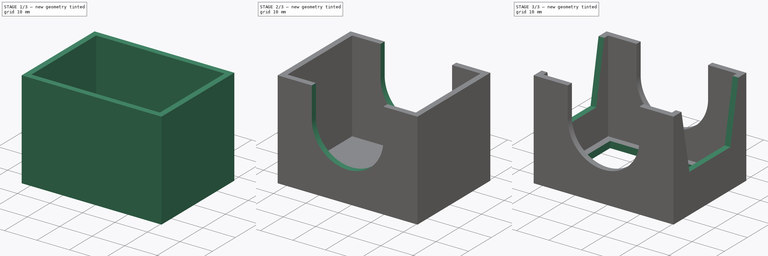
[diagram: build sequence overview — one tinted view per stage of 3, left to right]
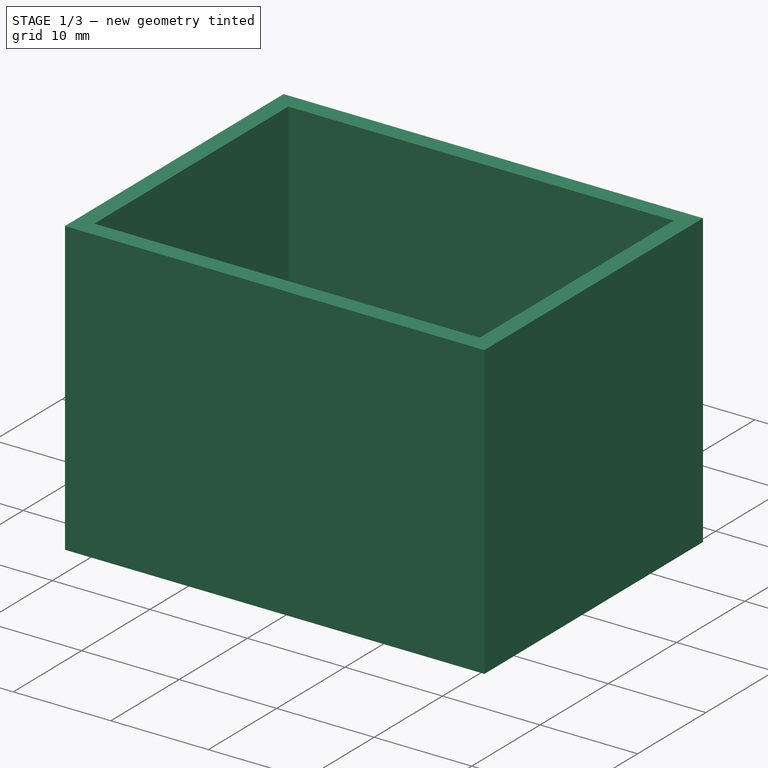
[diagram: stage 1 of 3 — iso view after this stage's code; geometry added in this stage tinted green]
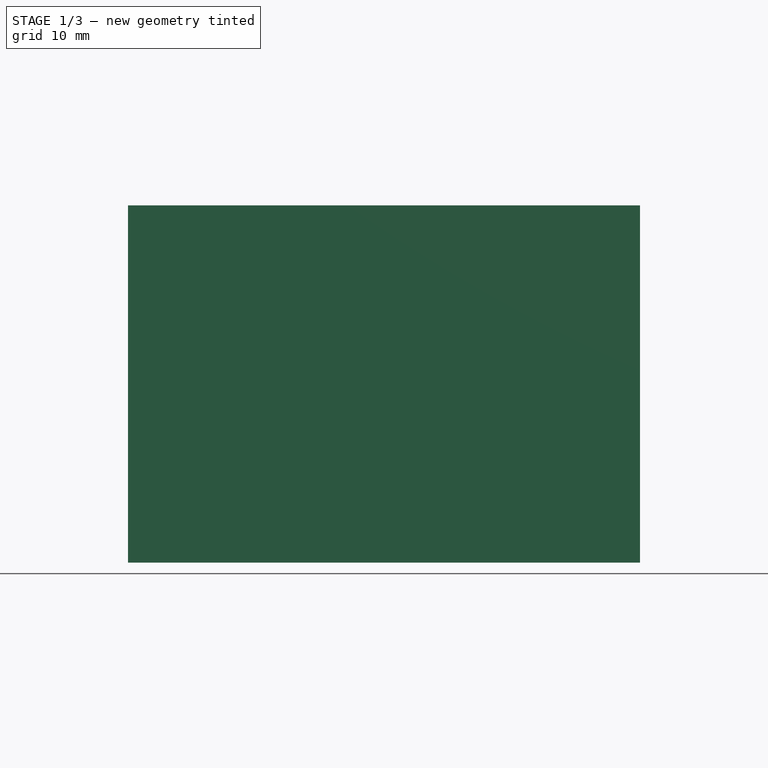
[diagram: stage 1 of 3 — front view after this stage's code; geometry added in this stage tinted green]
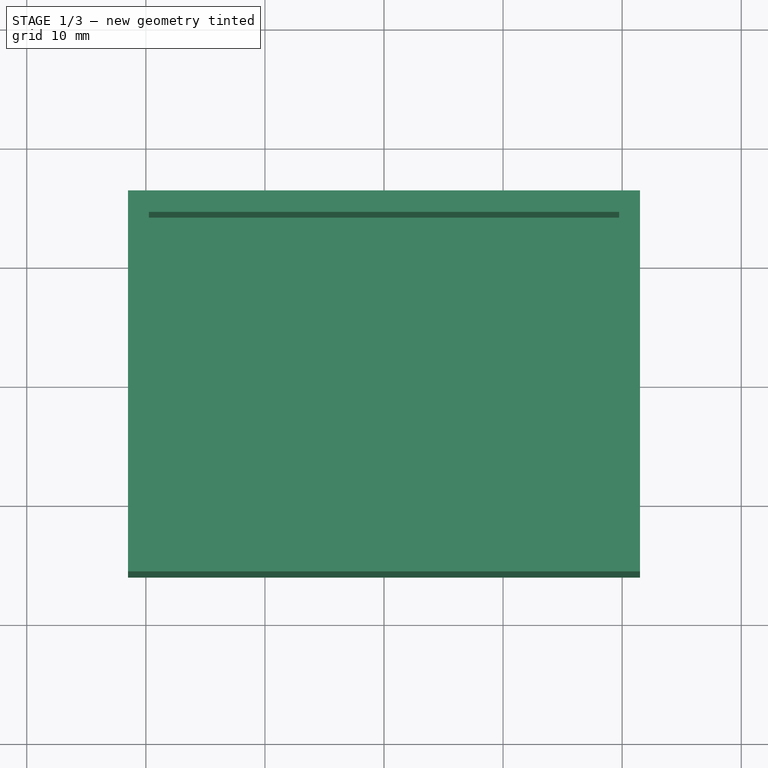
[diagram: stage 1 of 3 — top view after this stage's code; geometry added in this stage tinted green]
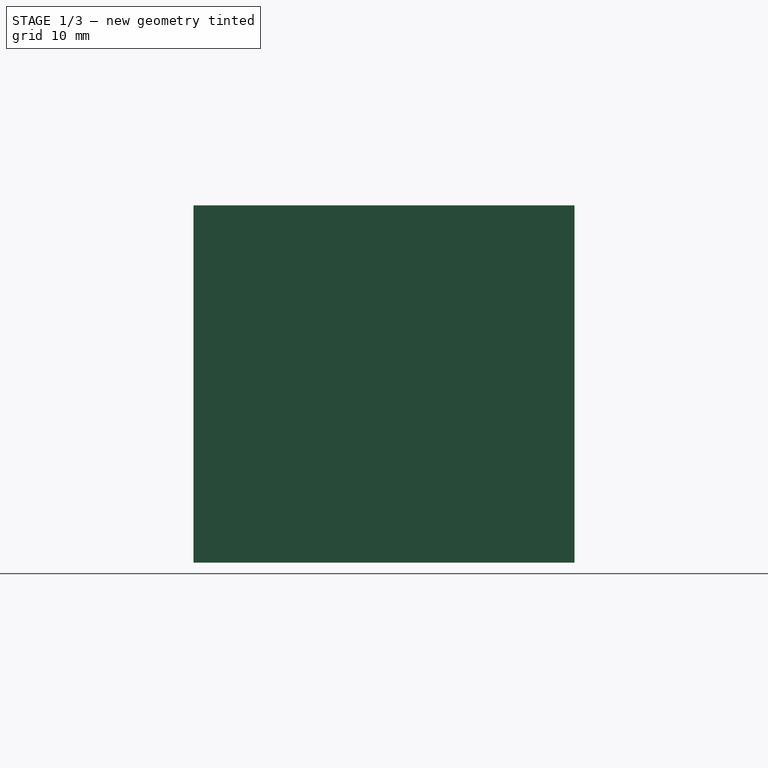
[diagram: stage 1 of 3 — right view after this stage's code; geometry added in this stage tinted green]
FCSTD DOCUMENT  (FreeCAD 0.15R4671 (Git))
Label: Rubiks Motor Side Bracket
License: All rights reserved
LicenseURL: http://en.wikipedia.org/wiki/All_rights_reserved
objects: Sketcher::SketchObject×5, PartDesign::Pocket×4, PartDesign::Pad×1
note: 15 computed .brp shape members not serialized (recipe doc carries the construction recipe); baked Part::Feature solids carry a one-line shape summary decoded from their .brp

FEATURE [Sketcher::SketchObject] Sketch
  sketch-geometry (4):
    g0: LineSegment StartX=-21.5 StartY=16 StartZ=0 EndX=21.5 EndY=16 EndZ=0
    g1: LineSegment StartX=21.5 StartY=16 StartZ=0 EndX=21.5 EndY=-16 EndZ=0
    g2: LineSegment StartX=21.5 StartY=-16 StartZ=0 EndX=-21.5 EndY=-16 EndZ=0
    g3: LineSegment StartX=-21.5 StartY=-16 StartZ=0 EndX=-21.5 EndY=16 EndZ=0
  constraints (12):
    c: Coincident(g0,g1)
    c: Coincident(g1,g2)
    c: Coincident(g2,g3)
    c: Coincident(g3,g0)
    c: Horizontal(g0)
    c: Horizontal(g2)
    c: Vertical(g1)
    c: Vertical(g3)
    c: Symmetric(g0,g0,g-2)
    c: Symmetric(g2,g0,g-1)
    c: Distance(g0) = 43
    c: Distance(g3) = 32
FEATURE [PartDesign::Pad] Pad
  Length = 30
  Length2 = 100
  Sketch = -> Sketch
  Type = 0
FEATURE [Sketcher::SketchObject] Sketch001
  Placement = pos=(0,0,30) rot=(0,0,1;0rad)
  Support = -> Pad [Face6]
  sketch-geometry (4):
    g0: LineSegment StartX=-19.75 StartY=14.2 StartZ=0 EndX=19.75 EndY=14.2 EndZ=0
    g1: LineSegment StartX=19.75 StartY=14.2 StartZ=0 EndX=19.75 EndY=-14.2 EndZ=0
    g2: LineSegment StartX=19.75 StartY=-14.2 StartZ=0 EndX=-19.75 EndY=-14.2 EndZ=0
    g3: LineSegment StartX=-19.75 StartY=-14.2 StartZ=0 EndX=-19.75 EndY=14.2 EndZ=0
  constraints (12):
    c: Coincident(g0,g1)
    c: Coincident(g1,g2)
    c: Coincident(g2,g3)
    c: Coincident(g3,g0)
    c: Horizontal(g0)
    c: Horizontal(g2)
    c: Vertical(g1)
    c: Vertical(g3)
    c: Distance(g1) = 28.4
    c: Symmetric(g1,g0,g-1)
    c: Symmetric(g0,g0,g-2)
    c: Distance(g0) = 39.5
FEATURE [PartDesign::Pocket] Pocket
  Length = 28
  Sketch = -> Sketch001
  Type = 0
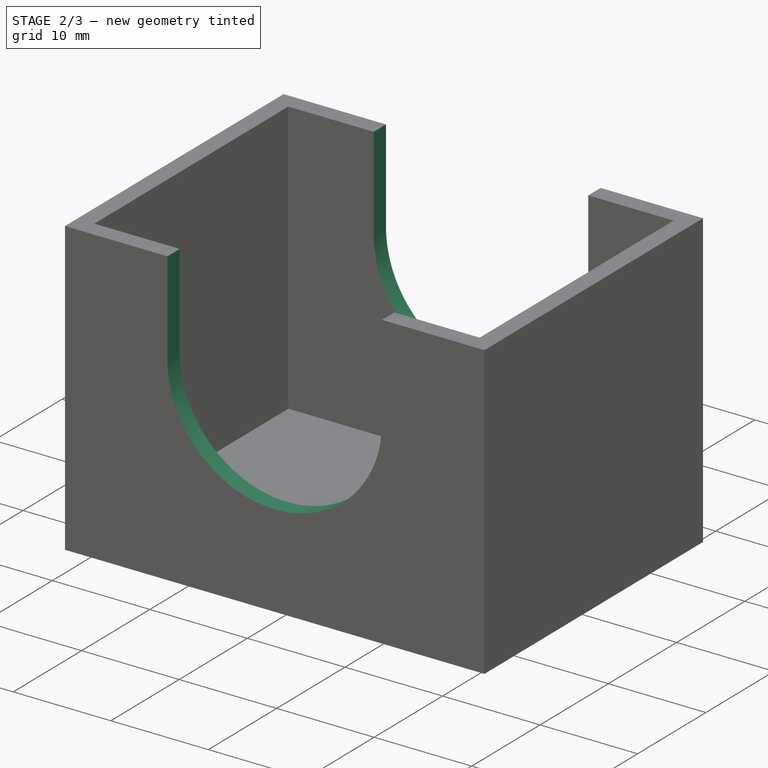
[diagram: stage 2 of 3 — iso view after this stage's code; geometry added in this stage tinted green]
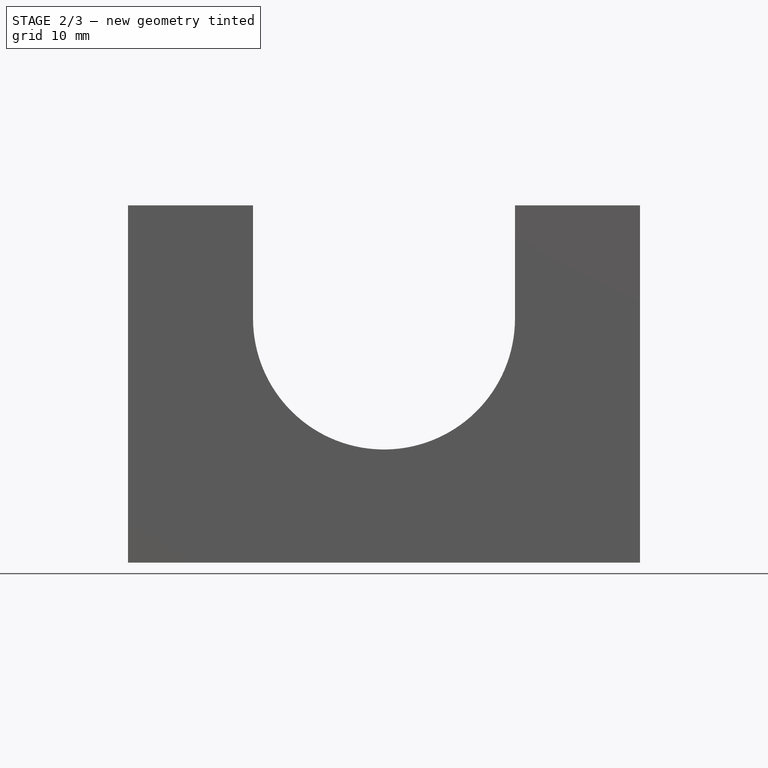
[diagram: stage 2 of 3 — front view after this stage's code; geometry added in this stage tinted green]
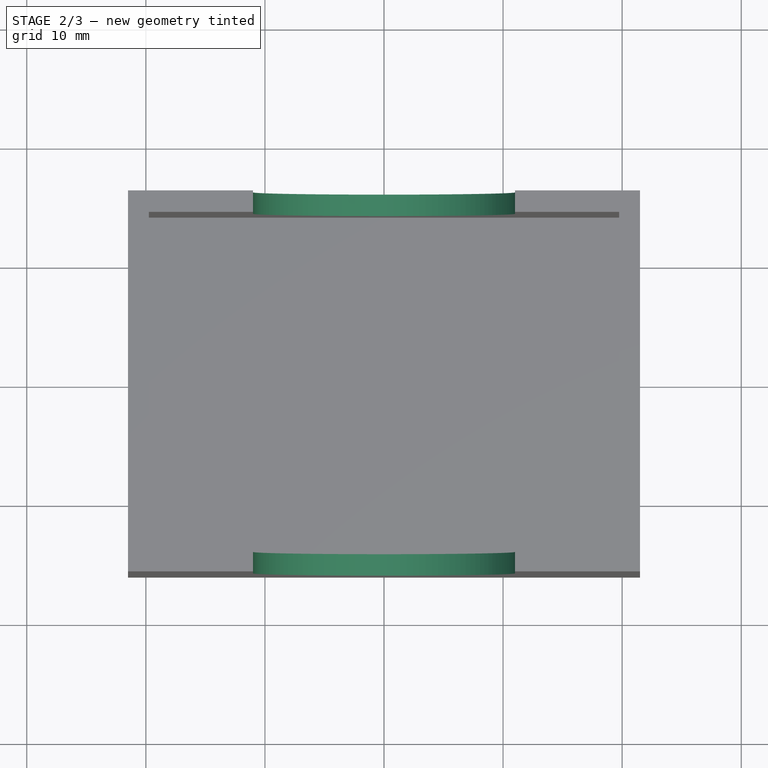
[diagram: stage 2 of 3 — top view after this stage's code; geometry added in this stage tinted green]
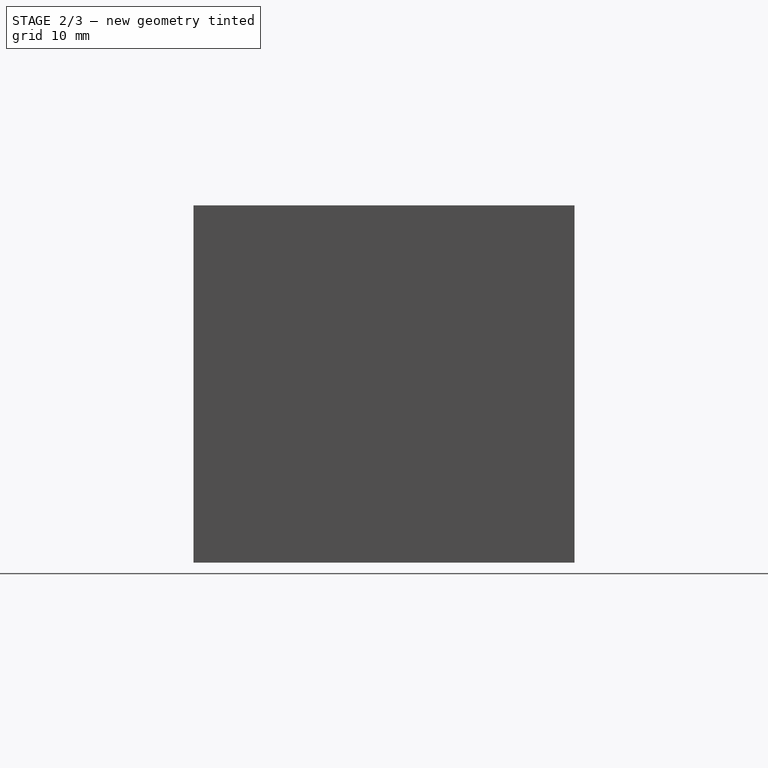
[diagram: stage 2 of 3 — right view after this stage's code; geometry added in this stage tinted green]
FEATURE [Sketcher::SketchObject] Sketch002
  ExternalGeometry = -> [Pocket]
  Placement = pos=(0,-16,0) rot=(1,0,0;1.5708rad)
  Support = -> Pocket [Face6]
  sketch-geometry (5):
    g0: LineSegment StartX=-11 StartY=30 StartZ=0 EndX=11 EndY=30 EndZ=0
    g1: LineSegment StartX=11 StartY=30 StartZ=0 EndX=11 EndY=20.5 EndZ=0
    g2: LineSegment StartX=-11 StartY=20.5 StartZ=0 EndX=-11 EndY=30 EndZ=0
    g3: ArcOfCircle CenterX=0 CenterY=20.5 CenterZ=0 NormalX=0 NormalY=0 NormalZ=1 Radius=11 StartAngle=3.1416 EndAngle=6.28318
    g4: GeomPoint [constr] X=0 Y=9.5 Z=0
  constraints (14):
    c: Coincident(g0,g1)
    c: Coincident(g2,g0)
    c: Horizontal(g0)
    c: Vertical(g1)
    c: Vertical(g2)
    c: Symmetric(g2,g1,g-2)
    c: PointOnObject(g0,g-3)
    c: Coincident(g3,g1)
    c: Coincident(g3,g2)
    c: Tangent(g3,g2)
    c: PointOnObject(g4,g3)
    c: PointOnObject(g4,g-2)
    c: DistanceY(g-1,g4) = 9.5
    c: DistanceX(g2,g1) = 22
FEATURE [PartDesign::Pocket] Pocket001
  Length = 3
  Sketch = -> Sketch002
  Type = 1
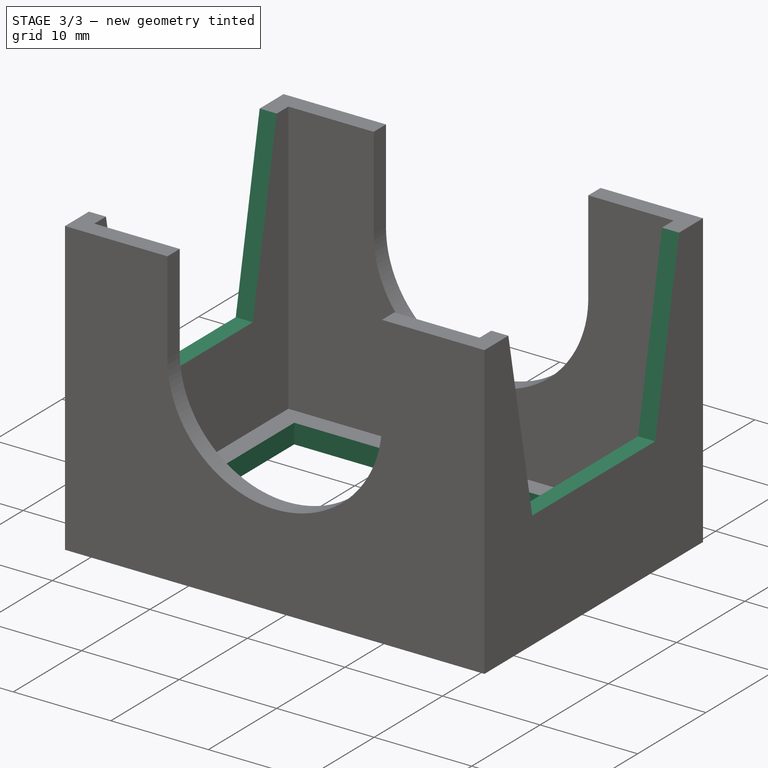
[diagram: stage 3 of 3 — iso view after this stage's code; geometry added in this stage tinted green]
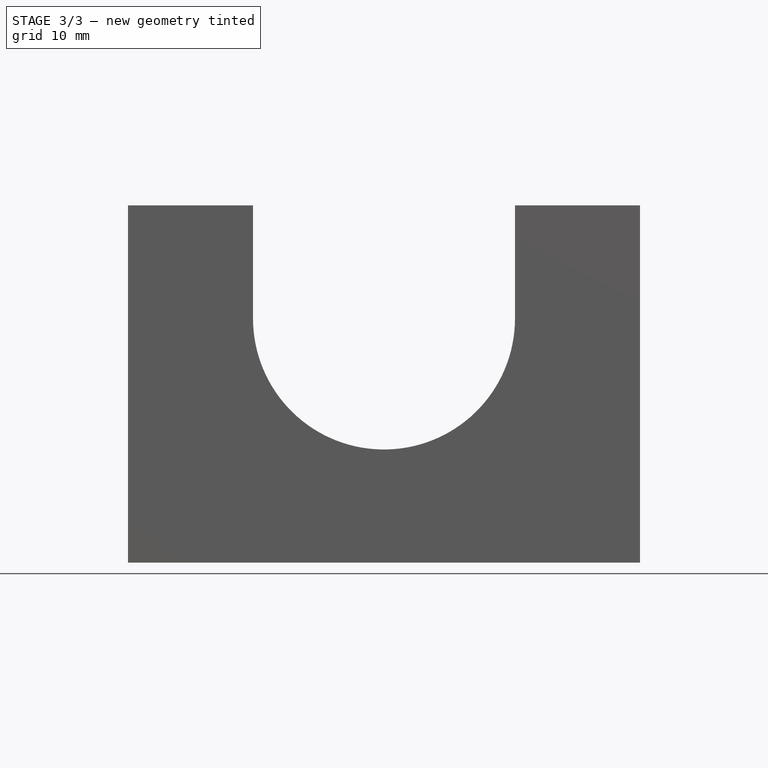
[diagram: stage 3 of 3 — front view after this stage's code; geometry added in this stage tinted green]
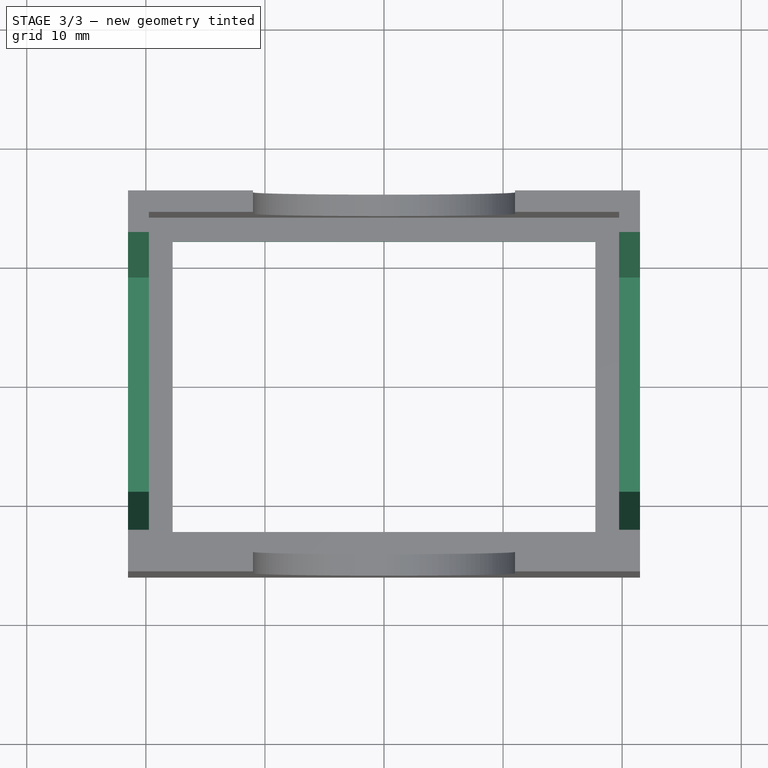
[diagram: stage 3 of 3 — top view after this stage's code; geometry added in this stage tinted green]
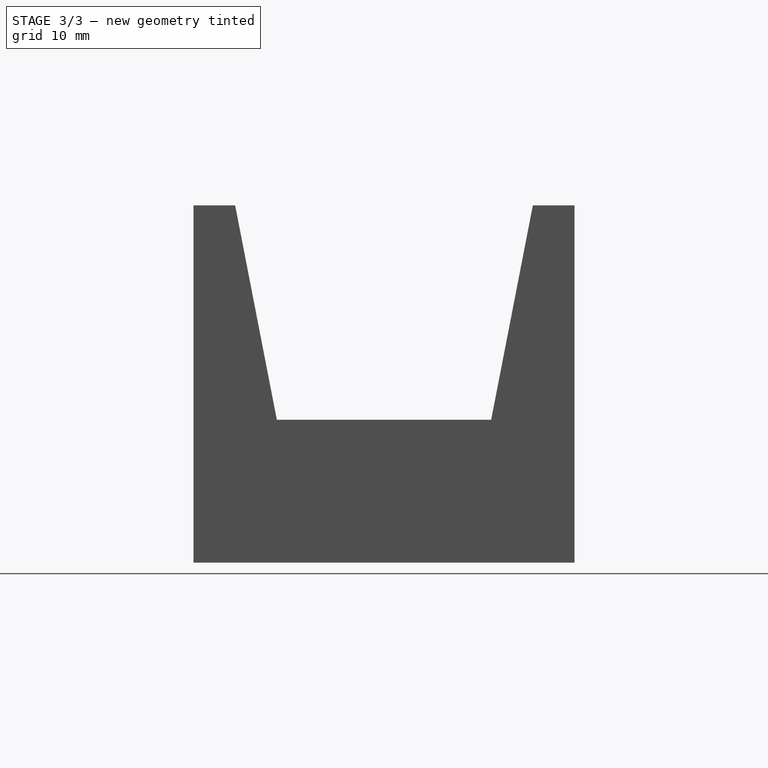
[diagram: stage 3 of 3 — right view after this stage's code; geometry added in this stage tinted green]
FEATURE [Sketcher::SketchObject] Sketch003
  ExternalGeometry = -> [Pocket001]
  Placement = pos=(0,0,2) rot=(0,0,1;0rad)
  Support = -> Pocket001 [Face18]
  sketch-geometry (4):
    g0: LineSegment StartX=-17.75 StartY=12.2 StartZ=0 EndX=17.75 EndY=12.2 EndZ=0
    g1: LineSegment StartX=17.75 StartY=12.2 StartZ=0 EndX=17.75 EndY=-12.2 EndZ=0
    g2: LineSegment StartX=17.75 StartY=-12.2 StartZ=0 EndX=-17.75 EndY=-12.2 EndZ=0
    g3: LineSegment StartX=-17.75 StartY=-12.2 StartZ=0 EndX=-17.75 EndY=12.2 EndZ=0
  constraints (12):
    c: Coincident(g0,g1)
    c: Coincident(g1,g2)
    c: Coincident(g2,g3)
    c: Coincident(g3,g0)
    c: Horizontal(g0)
    c: Horizontal(g2)
    c: Vertical(g1)
    c: Vertical(g3)
    c: DistanceY(g0,g-6) = 2
    c: DistanceX(g0,g-6) = -2
    c: DistanceY(g1,g-5) = -2
    c: DistanceX(g1,g-5) = 2
FEATURE [PartDesign::Pocket] Pocket002
  Length = 5
  Sketch = -> Sketch003
  Type = 1
FEATURE [Sketcher::SketchObject] Sketch004
  ExternalGeometry = -> [Pocket002]
  Placement = pos=(-21.5,0,0) rot=(0.57735,-0.57735,-0.57735;2.0944rad)
  Support = -> Pocket002 [Face9]
  sketch-geometry (4):
    g0: LineSegment StartX=-12.5 StartY=30 StartZ=0 EndX=12.5 EndY=30 EndZ=0
    g1: LineSegment StartX=12.5 StartY=30 StartZ=0 EndX=9 EndY=12 EndZ=0
    g2: LineSegment StartX=9 StartY=12 StartZ=0 EndX=-9 EndY=12 EndZ=0
    g3: LineSegment StartX=-9 StartY=12 StartZ=0 EndX=-12.5 EndY=30 EndZ=0
  constraints (12):
    c: Coincident(g0,g1)
    c: Coincident(g1,g2)
    c: Coincident(g2,g3)
    c: Coincident(g3,g0)
    c: Horizontal(g0)
    c: Horizontal(g2)
    c: PointOnObject(g0,g-6)
    c: Symmetric(g0,g0,g-2)
    c: Distance(g0) = 25
    c: Distance(g2) = 18
    c: Symmetric(g2,g1,g-2)
    c: DistanceY(g1,g-4) = -10
FEATURE [PartDesign::Pocket] Pocket003
  Length = 5
  Sketch = -> Sketch004
  Type = 1
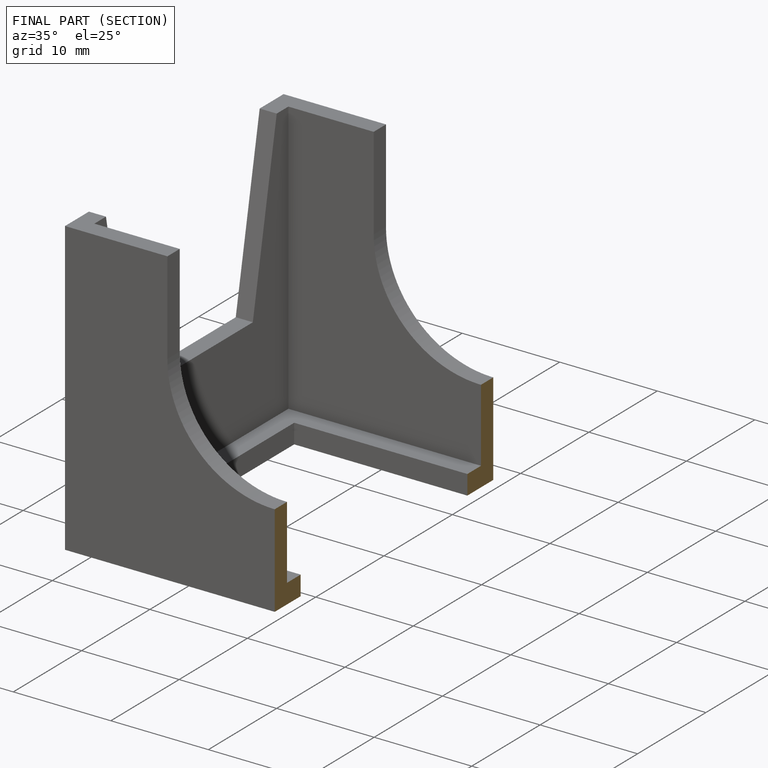
[diagram: finished part — half-section view (interior)]
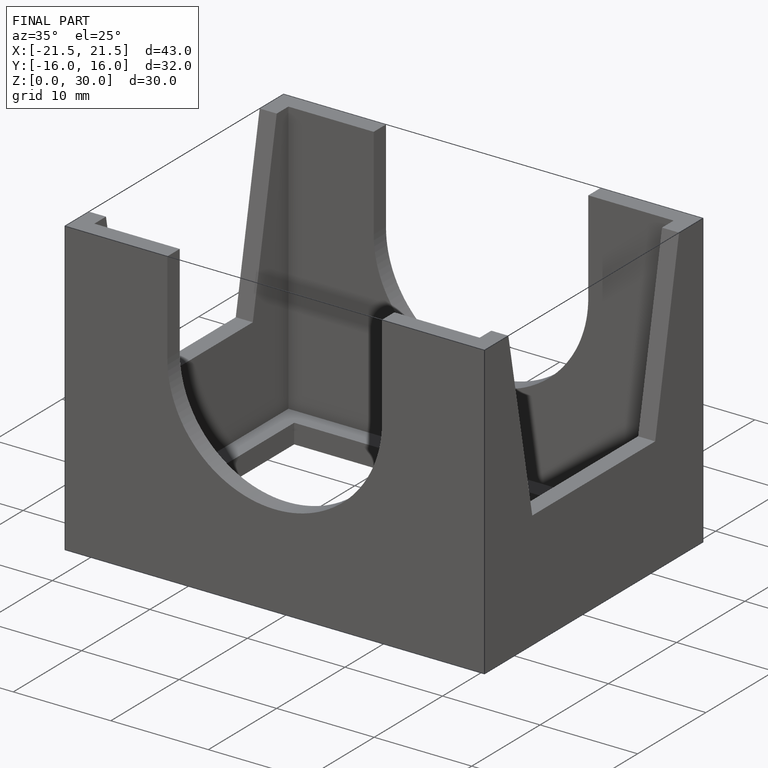
[diagram: finished part — iso view with bounding-box wireframe]
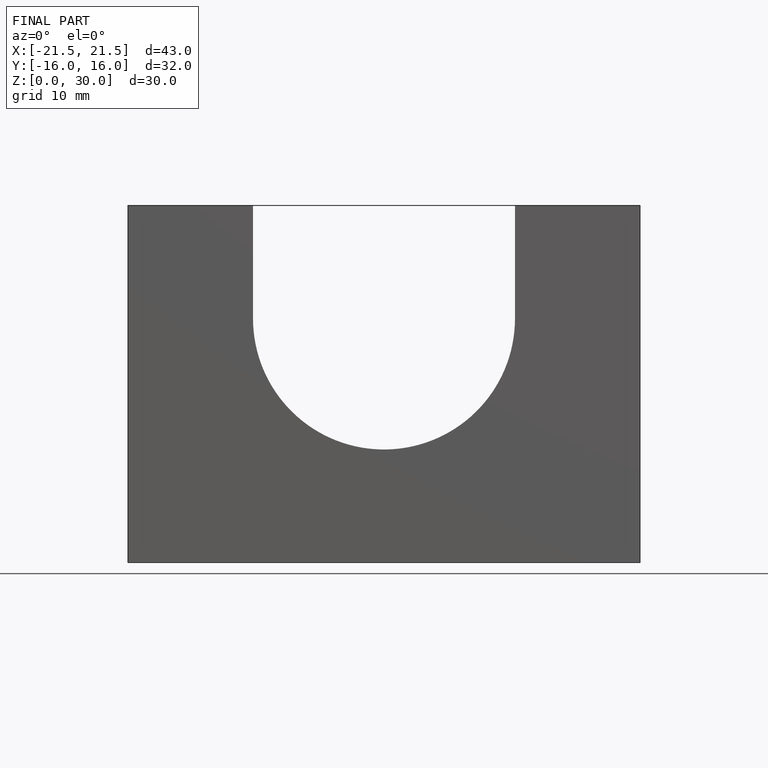
[diagram: finished part — front view with bounding-box wireframe]
